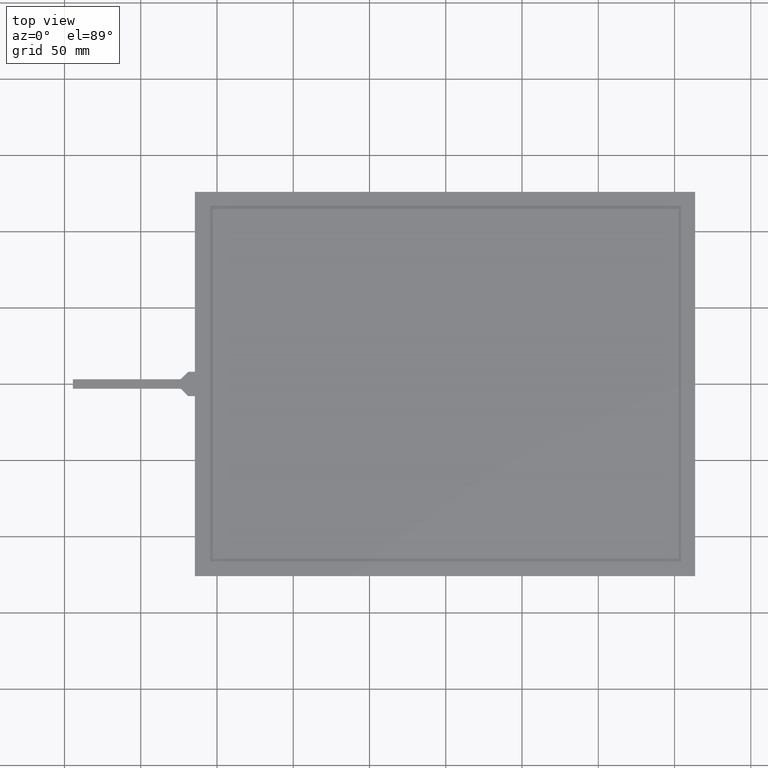
[diagram: clean part render]
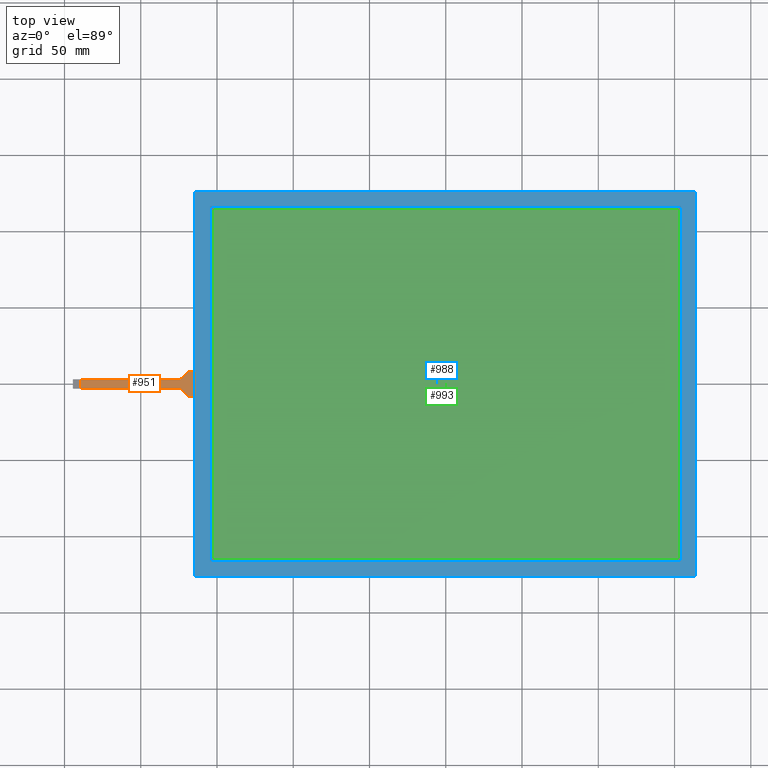
[diagram: same view with three faces highlighted in distinct colors, each labeled with its STEP entity id]
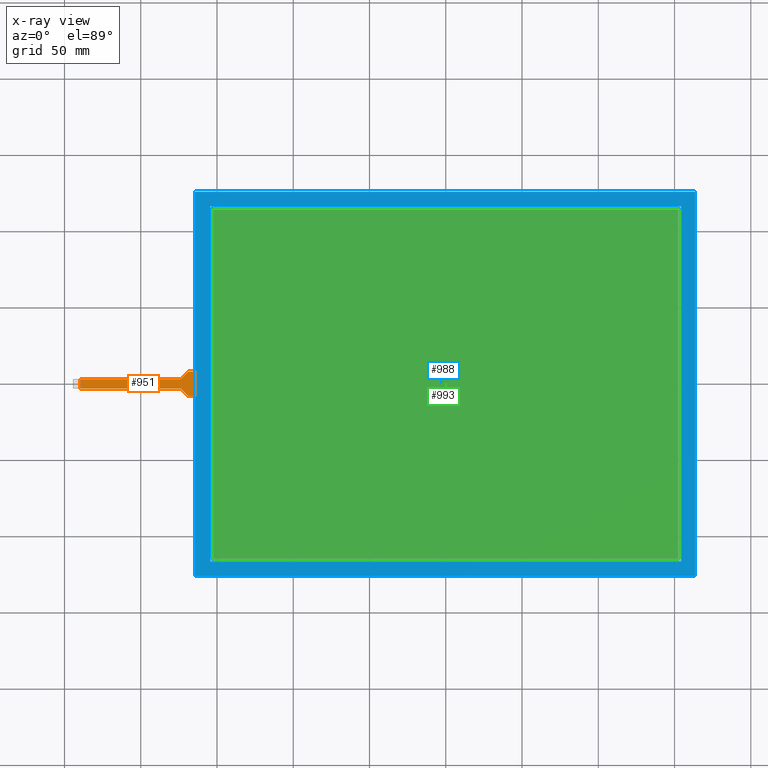
[diagram: x-ray of the same camera — body ghosted, the three highlighted faces saturated]
A machine part, top view with three faces highlighted in distinct colors.
The next image is the same camera in x-ray (body ghosted, the three faces saturated) — at least one of them is partly hidden behind the body in this view.
Their STEP definitions:

[orange] entity #951 — the highlighted planar face has unit normal (0, 0, 1).
#22=PLANE('',#1028);
#70=FACE_OUTER_BOUND('',#121,.T.);
#121=EDGE_LOOP('',(#713,#714,#715,#716,#717,#718,#719,#720,#721,#722,#723,
#724));
#199=LINE('',#1406,#325);
#203=LINE('',#1419,#329);
#204=LINE('',#1423,#330);
#205=LINE('',#1424,#331);
#206=LINE('',#1428,#332);
#207=LINE('',#1432,#333);
#208=LINE('',#1434,#334);
#209=LINE('',#1435,#335);
#325=VECTOR('',#1131,10.);
#329=VECTOR('',#1143,10.);
#330=VECTOR('',#1146,10.);
#331=VECTOR('',#1147,10.);
#332=VECTOR('',#1150,10.);
#333=VECTOR('',#1153,10.);
#334=VECTOR('',#1154,10.);
#335=VECTOR('',#1155,10.);
#425=CIRCLE('',#1027,1.);
#426=CIRCLE('',#1029,1.);
#427=CIRCLE('',#1030,1.);
#428=CIRCLE('',#1031,1.);
#462=VERTEX_POINT('',#1403);
#463=VERTEX_POINT('',#1405);
#466=VERTEX_POINT('',#1412);
#467=VERTEX_POINT('',#1414);
#468=VERTEX_POINT('',#1418);
#469=VERTEX_POINT('',#1420);
#470=VERTEX_POINT('',#1422);
#471=VERTEX_POINT('',#1425);
#472=VERTEX_POINT('',#1427);
#473=VERTEX_POINT('',#1429);
#474=VERTEX_POINT('',#1431);
#475=VERTEX_POINT('',#1433);
#559=EDGE_CURVE('',#463,#462,#199,.T.);
#563=EDGE_CURVE('',#466,#467,#425,.T.);
#565=EDGE_CURVE('',#466,#468,#203,.T.);
#566=EDGE_CURVE('',#469,#468,#426,.T.);
#567=EDGE_CURVE('',#469,#470,#204,.T.);
#568=EDGE_CURVE('',#470,#463,#205,.T.);
#569=EDGE_CURVE('',#471,#462,#427,.T.);
#570=EDGE_CURVE('',#471,#472,#206,.T.);
#571=EDGE_CURVE('',#473,#472,#428,.T.);
#572=EDGE_CURVE('',#473,#474,#207,.T.);
#573=EDGE_CURVE('',#475,#474,#208,.T.);
#574=EDGE_CURVE('',#475,#467,#209,.T.);
#713=ORIENTED_EDGE('',*,*,#563,.F.);
#714=ORIENTED_EDGE('',*,*,#565,.T.);
#715=ORIENTED_EDGE('',*,*,#566,.F.);
#716=ORIENTED_EDGE('',*,*,#567,.T.);
#717=ORIENTED_EDGE('',*,*,#568,.T.);
#718=ORIENTED_EDGE('',*,*,#559,.T.);
#719=ORIENTED_EDGE('',*,*,#569,.F.);
#720=ORIENTED_EDGE('',*,*,#570,.T.);
#721=ORIENTED_EDGE('',*,*,#571,.F.);
#722=ORIENTED_EDGE('',*,*,#572,.T.);
#723=ORIENTED_EDGE('',*,*,#573,.F.);
#724=ORIENTED_EDGE('',*,*,#574,.T.);
#951=ADVANCED_FACE('',(#70),#22,.T.);
#1027=AXIS2_PLACEMENT_3D('',#1415,#1138,#1139);
#1028=AXIS2_PLACEMENT_3D('',#1417,#1141,#1142);
#1029=AXIS2_PLACEMENT_3D('',#1421,#1144,#1145);
#1030=AXIS2_PLACEMENT_3D('',#1426,#1148,#1149);
#1031=AXIS2_PLACEMENT_3D('',#1430,#1151,#1152);
#1131=DIRECTION('',(1.,1.87997180435454E-16,0.));
#1138=DIRECTION('center_axis',(0.,0.,-1.));
#1139=DIRECTION('ref_axis',(-0.376366215351602,0.926470977387803,0.));
#1141=DIRECTION('center_axis',(0.,0.,1.));
#1142=DIRECTION('ref_axis',(1.,0.,0.));
#1143=DIRECTION('',(-0.716696943883792,-0.697384750785126,0.));
#1144=DIRECTION('center_axis',(0.,0.,1.));
#1145=DIRECTION('ref_axis',(0.376366215351606,-0.926470977387802,0.));
#1146=DIRECTION('',(-1.,-1.88706463109092E-16,0.));
#1147=DIRECTION('',(0.,-1.,0.));
#1148=DIRECTION('center_axis',(0.,0.,1.));
#1149=DIRECTION('ref_axis',(0.388982807598806,0.92124501376808,0.));
#1150=DIRECTION('',(0.697384750785128,-0.71669694388379,0.));
#1151=DIRECTION('center_axis',(0.,0.,-1.));
#1152=DIRECTION('ref_axis',(-0.388982807598806,-0.92124501376808,0.));
#1153=DIRECTION('',(1.,1.01159273314365E-15,0.));
#1154=DIRECTION('',(1.40980701539702E-16,-1.,0.));
#1155=DIRECTION('',(-1.,1.01159273314365E-15,0.));
#1403=CARTESIAN_POINT('',(-174.055873722342,-3.12500000000005,-0.2));
#1405=CARTESIAN_POINT('',(-239.5,-3.12500000000006,-0.2));
#1406=CARTESIAN_POINT('',(-244.5,-3.12500000000006,-0.2));
#1412=CARTESIAN_POINT('',(-169.181148371516,7.71669694388378,-0.2));
#1414=CARTESIAN_POINT('',(-168.483763620731,7.99999999999996,-0.2));
#1415=CARTESIAN_POINT('Origin',(-168.483763620731,6.99999999999996,-0.2));
#1417=CARTESIAN_POINT('Origin',(-204.5,-4.82947015711943E-14,-0.2));
#1418=CARTESIAN_POINT('',(-173.608851628484,3.40830305611616,-0.2));
#1419=CARTESIAN_POINT('',(-168.89,7.99999999999996,-0.2));
#1420=CARTESIAN_POINT('',(-174.306236379269,3.12499999999995,-0.2));
#1421=CARTESIAN_POINT('Origin',(-174.306236379269,4.12499999999995,-0.2));
#1422=CARTESIAN_POINT('',(-239.5,3.12499999999992,-0.2));
#1423=CARTESIAN_POINT('',(-173.9,3.12499999999995,-0.2));
#1424=CARTESIAN_POINT('',(-239.5,1.56249999999993,-0.2));
#1425=CARTESIAN_POINT('',(-173.339176778459,-3.42761524921491,-0.2));
#1426=CARTESIAN_POINT('Origin',(-174.055873722342,-4.12500000000005,-0.2));
#1427=CARTESIAN_POINT('',(-169.184460946092,-7.69738475078519,-0.2));
#1428=CARTESIAN_POINT('',(-173.633637724551,-3.12500000000005,-0.2));
#1429=CARTESIAN_POINT('',(-168.467764002208,-8.00000000000005,-0.2));
#1430=CARTESIAN_POINT('Origin',(-168.467764002208,-7.00000000000005,-0.2));
#1431=CARTESIAN_POINT('',(-164.5,-8.00000000000005,-0.2));
#1432=CARTESIAN_POINT('',(-168.89,-8.00000000000005,-0.2));
#1433=CARTESIAN_POINT('',(-164.5,7.99999999999995,-0.2));
#1434=CARTESIAN_POINT('',(-164.5,-63.,-0.2));
#1435=CARTESIAN_POINT('',(-164.5,7.99999999999995,-0.2));

[blue] entity #988 — the highlighted planar face has unit normal (0, 0, 1).
#16=FACE_BOUND('',#160,.T.);
#56=PLANE('',#1071);
#107=FACE_OUTER_BOUND('',#159,.T.);
#159=EDGE_LOOP('',(#902,#903,#904,#905));
#160=EDGE_LOOP('',(#906,#907,#908,#909));
#270=LINE('',#1565,#396);
#274=LINE('',#1573,#400);
#277=LINE('',#1579,#403);
#280=LINE('',#1584,#406);
#282=LINE('',#1590,#408);
#283=LINE('',#1592,#409);
#284=LINE('',#1594,#410);
#285=LINE('',#1595,#411);
#396=VECTOR('',#1286,10.);
#400=VECTOR('',#1292,10.);
#403=VECTOR('',#1297,10.);
#406=VECTOR('',#1302,10.);
#408=VECTOR('',#1308,10.);
#409=VECTOR('',#1309,10.);
#410=VECTOR('',#1310,10.);
#411=VECTOR('',#1311,10.);
#508=VERTEX_POINT('',#1563);
#509=VERTEX_POINT('',#1564);
#512=VERTEX_POINT('',#1572);
#514=VERTEX_POINT('',#1578);
#516=VERTEX_POINT('',#1588);
#517=VERTEX_POINT('',#1589);
#518=VERTEX_POINT('',#1591);
#519=VERTEX_POINT('',#1593);
#638=EDGE_CURVE('',#508,#509,#270,.T.);
#642=EDGE_CURVE('',#512,#508,#274,.T.);
#645=EDGE_CURVE('',#514,#512,#277,.T.);
#648=EDGE_CURVE('',#509,#514,#280,.T.);
#650=EDGE_CURVE('',#516,#517,#282,.T.);
#651=EDGE_CURVE('',#517,#518,#283,.T.);
#652=EDGE_CURVE('',#518,#519,#284,.T.);
#653=EDGE_CURVE('',#519,#516,#285,.T.);
#902=ORIENTED_EDGE('',*,*,#650,.T.);
#903=ORIENTED_EDGE('',*,*,#651,.T.);
#904=ORIENTED_EDGE('',*,*,#652,.T.);
#905=ORIENTED_EDGE('',*,*,#653,.T.);
#906=ORIENTED_EDGE('',*,*,#638,.T.);
#907=ORIENTED_EDGE('',*,*,#648,.T.);
#908=ORIENTED_EDGE('',*,*,#645,.T.);
#909=ORIENTED_EDGE('',*,*,#642,.T.);
#988=ADVANCED_FACE('',(#107,#16),#56,.T.);
#1071=AXIS2_PLACEMENT_3D('',#1587,#1306,#1307);
#1286=DIRECTION('',(-1.52476981922768E-16,1.,0.));
#1292=DIRECTION('',(-1.,-1.1497455271199E-16,0.));
#1297=DIRECTION('',(7.62384909613841E-17,-1.,0.));
#1302=DIRECTION('',(1.,-5.74872763559952E-17,0.));
#1306=DIRECTION('center_axis',(0.,0.,1.));
#1307=DIRECTION('ref_axis',(1.,0.,0.));
#1308=DIRECTION('',(-1.,0.,0.));
#1309=DIRECTION('',(1.40980701539702E-16,-1.,0.));
#1310=DIRECTION('',(1.,1.08314441426845E-16,0.));
#1311=DIRECTION('',(-1.40980701539702E-16,1.,0.));
#1563=CARTESIAN_POINT('',(-154.5,-116.5,0.));
#1564=CARTESIAN_POINT('',(-154.5,116.5,0.));
#1565=CARTESIAN_POINT('',(-154.5,-58.25,0.));
#1572=CARTESIAN_POINT('',(154.5,-116.5,0.));
#1573=CARTESIAN_POINT('',(77.,-116.5,0.));
#1578=CARTESIAN_POINT('',(154.5,116.5,0.));
#1579=CARTESIAN_POINT('',(154.5,58.25,0.));
#1584=CARTESIAN_POINT('',(-77.5,116.5,0.));
#1587=CARTESIAN_POINT('Origin',(-0.499999999999989,1.77635683940025E-14,
0.));
#1588=CARTESIAN_POINT('',(163.5,126.,0.));
#1589=CARTESIAN_POINT('',(-164.5,126.,0.));
#1590=CARTESIAN_POINT('',(163.5,126.,0.));
#1591=CARTESIAN_POINT('',(-164.5,-126.,0.));
#1592=CARTESIAN_POINT('',(-164.5,126.,0.));
#1593=CARTESIAN_POINT('',(163.5,-126.,0.));
#1594=CARTESIAN_POINT('',(-164.5,-126.,0.));
#1595=CARTESIAN_POINT('',(163.5,-126.,0.));

[green] entity #993 — the highlighted planar face has unit normal (0, 0, 1).
#61=PLANE('',#1076);
#112=FACE_OUTER_BOUND('',#166,.T.);
#166=EDGE_LOOP('',(#930,#931,#932,#933));
#258=LINE('',#1541,#384);
#262=LINE('',#1549,#388);
#265=LINE('',#1555,#391);
#268=LINE('',#1560,#394);
#384=VECTOR('',#1266,10.);
#388=VECTOR('',#1272,10.);
#391=VECTOR('',#1277,10.);
#394=VECTOR('',#1282,10.);
#500=VERTEX_POINT('',#1539);
#501=VERTEX_POINT('',#1540);
#504=VERTEX_POINT('',#1548);
#506=VERTEX_POINT('',#1554);
#626=EDGE_CURVE('',#500,#501,#258,.T.);
#630=EDGE_CURVE('',#504,#500,#262,.T.);
#633=EDGE_CURVE('',#506,#504,#265,.T.);
#636=EDGE_CURVE('',#501,#506,#268,.T.);
#930=ORIENTED_EDGE('',*,*,#626,.T.);
#931=ORIENTED_EDGE('',*,*,#636,.T.);
#932=ORIENTED_EDGE('',*,*,#633,.T.);
#933=ORIENTED_EDGE('',*,*,#630,.T.);
#993=ADVANCED_FACE('',(#112),#61,.T.);
#1076=AXIS2_PLACEMENT_3D('',#1612,#1328,#1329);
#1266=DIRECTION('',(1.,0.,0.));
#1272=DIRECTION('',(0.,-1.,0.));
#1277=DIRECTION('',(-1.,0.,0.));
#1282=DIRECTION('',(0.,1.,0.));
#1328=DIRECTION('center_axis',(0.,0.,1.));
#1329=DIRECTION('ref_axis',(1.,0.,0.));
#1539=CARTESIAN_POINT('',(-152.5,-114.5,0.));
#1540=CARTESIAN_POINT('',(152.5,-114.5,0.));
#1541=CARTESIAN_POINT('',(-76.5,-114.5,0.));
#1548=CARTESIAN_POINT('',(-152.5,114.5,0.));
#1549=CARTESIAN_POINT('',(-152.5,57.25,0.));
#1554=CARTESIAN_POINT('',(152.5,114.5,0.));
#1555=CARTESIAN_POINT('',(76.,114.5,0.));
#1560=CARTESIAN_POINT('',(152.5,-57.25,0.));
#1612=CARTESIAN_POINT('Origin',(-0.499999999999989,1.77635683940025E-14,
0.));